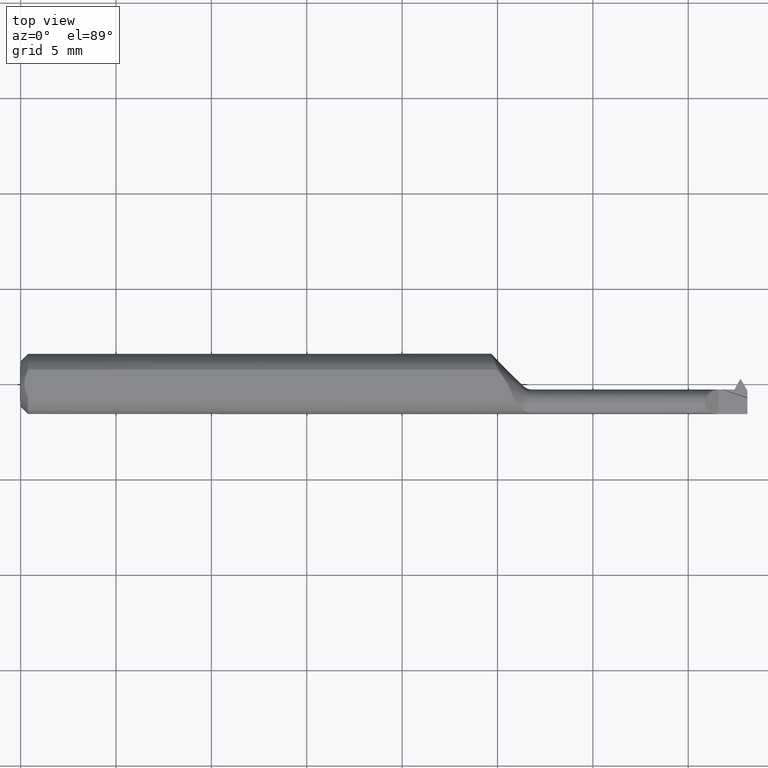
[diagram: clean part render]
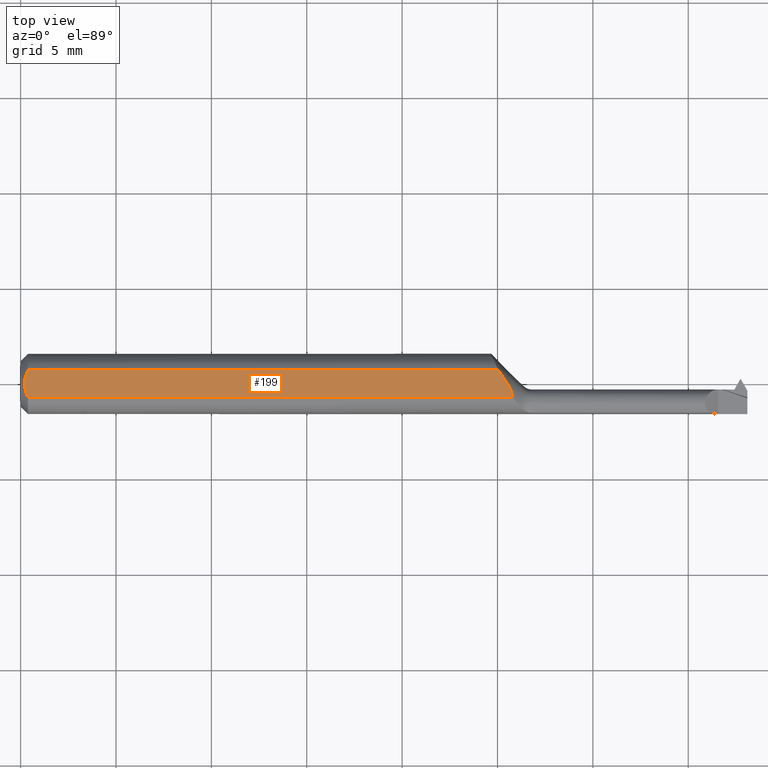
[diagram: same view with one face highlighted and labeled with its STEP entity id]
A machine part, top view. The second image highlights one B-rep face of the part: STEP entity #199.
In plain terms, the highlighted planar face has unit normal (-0, 0, -1).
Its self-contained STEP definition (entity closure, byte-faithful):
#1 = VERTEX_POINT ( 'NONE', #170 ) ;
#52 = VERTEX_POINT ( 'NONE', #769 ) ;
#72 = PLANE ( 'NONE',  #852 ) ;
#113 = CARTESIAN_POINT ( 'NONE',  ( 0.007999999999999490158, -4.651964048606909505E-17, 0.05534999999999997561 ) ) ;
#144 = CARTESIAN_POINT ( 'NONE',  ( 0.01115300221660647968, 0.01950510849705851257, 0.05534999999999998949 ) ) ;
#162 = LINE ( 'NONE', #648, #903 ) ;
#169 = DIRECTION ( 'NONE',  ( -1.000000000000000000, 0.000000000000000000, 0.000000000000000000 ) ) ;
#170 = CARTESIAN_POINT ( 'NONE',  ( 0.007999999999999490158, -4.651964048606909505E-17, 0.05534999999999997561 ) ) ;
#174 = CARTESIAN_POINT ( 'NONE',  ( 0.9851666200689770392, 0.02870365830342894511, 0.05534999999999997561 ) ) ;
#182 = CARTESIAN_POINT ( 'NONE',  ( 0.9983330642226078133, 0.01109683746160214542, 0.05534999999999997561 ) ) ;
#199 = ADVANCED_FACE ( 'NONE', ( #406 ), #72, .F. ) ;
#207 = EDGE_CURVE ( 'NONE', #431, #871, #336, .T. ) ;
#236 = EDGE_CURVE ( 'NONE', #1, #871, #495, .T. ) ;
#257 = EDGE_CURVE ( 'NONE', #52, #431, #692, .T. ) ;
#263 = CARTESIAN_POINT ( 'NONE',  ( 0.007999999999999491893, -0.005022070041391886452, 0.05534999999999997561 ) ) ;
#273 = CARTESIAN_POINT ( 'NONE',  ( 1.006669642971511625, -0.003011374413207761232, 0.05534999999999997561 ) ) ;
#325 = DIRECTION ( 'NONE',  ( 1.000000000000000000, 0.000000000000000000, 0.000000000000000000 ) ) ;
#336 = LINE ( 'NONE', #970, #400 ) ;
#400 = VECTOR ( 'NONE', #723, 39.37007874015748143 ) ;
#406 = FACE_OUTER_BOUND ( 'NONE', #552, .T. ) ;
#424 = CARTESIAN_POINT ( 'NONE',  ( 1.015256075970327521, -0.02331491715496054537, 0.05534999999999998255 ) ) ;
#431 = VERTEX_POINT ( 'NONE', #530 ) ;
#437 = ORIENTED_EDGE ( 'NONE', *, *, #236, .T. ) ;
#443 = ORIENTED_EDGE ( 'NONE', *, *, #207, .F. ) ;
#455 = CARTESIAN_POINT ( 'NONE',  ( 0.008690002085521212130, 0.009916139514497459423, 0.05534999999999997561 ) ) ;
#462 = CARTESIAN_POINT ( 'NONE',  ( 0.007999999999999490158, -4.651964048606909505E-17, 0.05534999999999997561 ) ) ;
#494 = EDGE_CURVE ( 'NONE', #604, #1, #616, .T. ) ;
#495 = B_SPLINE_CURVE_WITH_KNOTS ( 'NONE', 3,
 ( #113, #263, #930, #1003, #679, #683 ),
 .UNSPECIFIED., .F., .F.,
 ( 4, 2, 4 ),
 ( 0.001738329168397429294, 0.002113106046619105290, 0.002487882924840781069 ),
 .UNSPECIFIED. ) ;
#518 = ORIENTED_EDGE ( 'NONE', *, *, #1031, .F. ) ;
#530 = CARTESIAN_POINT ( 'NONE',  ( 1.016227708862855295, -0.02870365830342892083, 0.05534999999999997561 ) ) ;
#537 = CARTESIAN_POINT ( 'NONE',  ( 0.01293485069452587725, 0.02421774721031868041, 0.05534999999999997561 ) ) ;
#552 = EDGE_LOOP ( 'NONE', ( #699, #518, #860, #437, #443 ) ) ;
#554 = CARTESIAN_POINT ( 'NONE',  ( 0.01499999999999943046, 0.02870365830342891042, 0.05534999999999997561 ) ) ;
#604 = VERTEX_POINT ( 'NONE', #554 ) ;
#616 = B_SPLINE_CURVE_WITH_KNOTS ( 'NONE', 3,
 ( #619, #537, #144, #455, #882, #462 ),
 .UNSPECIFIED., .F., .F.,
 ( 4, 2, 4 ),
 ( 0.0009891891268780975653, 0.001363759147637763538, 0.001738329168397429294 ),
 .UNSPECIFIED. ) ;
#619 = CARTESIAN_POINT ( 'NONE',  ( 0.01499999999999943046, 0.02870365830342891042, 0.05534999999999997561 ) ) ;
#648 = CARTESIAN_POINT ( 'NONE',  ( 1.499999999999999778, 0.02870365830342891042, 0.05534999999999997561 ) ) ;
#662 = CARTESIAN_POINT ( 'NONE',  ( 0.9918909423092718836, 0.02001045346835476565, 0.05534999999999997561 ) ) ;
#679 = CARTESIAN_POINT ( 'NONE',  ( 0.01293229606224332445, -0.02421219804577847551, 0.05534999999999998255 ) ) ;
#683 = CARTESIAN_POINT ( 'NONE',  ( 0.01499999999999943393, -0.02870365830342891042, 0.05534999999999997561 ) ) ;
#692 = B_SPLINE_CURVE_WITH_KNOTS ( 'NONE', 3,
 ( #174, #662, #182, #273, #997, #755, #424, #748 ),
 .UNSPECIFIED., .F., .F.,
 ( 4, 2, 2, 4 ),
 ( 0.004276405394202669255, 0.005113535593956955450, 0.005532100693834099414, 0.005950665793711242511 ),
 .UNSPECIFIED. ) ;
#699 = ORIENTED_EDGE ( 'NONE', *, *, #257, .F. ) ;
#723 = DIRECTION ( 'NONE',  ( -1.000000000000000000, -0.000000000000000000, -0.000000000000000000 ) ) ;
#734 = DIRECTION ( 'NONE',  ( -0.000000000000000000, 0.000000000000000000, -1.000000000000000000 ) ) ;
#748 = CARTESIAN_POINT ( 'NONE',  ( 1.016227708862855295, -0.02870365830342892083, 0.05534999999999997561 ) ) ;
#755 = CARTESIAN_POINT ( 'NONE',  ( 1.013525076401466052, -0.01798177169434002007, 0.05534999999999997561 ) ) ;
#769 = CARTESIAN_POINT ( 'NONE',  ( 0.9851666200689770392, 0.02870365830342894511, 0.05534999999999997561 ) ) ;
#852 = AXIS2_PLACEMENT_3D ( 'NONE', #1067, #734, #169 ) ;
#860 = ORIENTED_EDGE ( 'NONE', *, *, #494, .T. ) ;
#871 = VERTEX_POINT ( 'NONE', #877 ) ;
#877 = CARTESIAN_POINT ( 'NONE',  ( 0.01499999999999943393, -0.02870365830342891042, 0.05534999999999997561 ) ) ;
#882 = CARTESIAN_POINT ( 'NONE',  ( 0.007999999999999483219, 0.005019298118353929250, 0.05534999999999998255 ) ) ;
#903 = VECTOR ( 'NONE', #325, 39.37007874015748143 ) ;
#930 = CARTESIAN_POINT ( 'NONE',  ( 0.008689995748020561128, -0.009914689980563693578, 0.05534999999999998949 ) ) ;
#970 = CARTESIAN_POINT ( 'NONE',  ( 1.499999999999999778, -0.02870365830342891042, 0.05534999999999997561 ) ) ;
#997 = CARTESIAN_POINT ( 'NONE',  ( 1.009223820819985740, -0.007844900568043339933, 0.05534999999999998255 ) ) ;
#1003 = CARTESIAN_POINT ( 'NONE',  ( 0.01115060403343444938, -0.01949719534315694572, 0.05534999999999997561 ) ) ;
#1031 = EDGE_CURVE ( 'NONE', #604, #52, #162, .T. ) ;
#1067 = CARTESIAN_POINT ( 'NONE',  ( 0.000000000000000000, 0.1749999999999999889, 0.05534999999999997561 ) ) ;